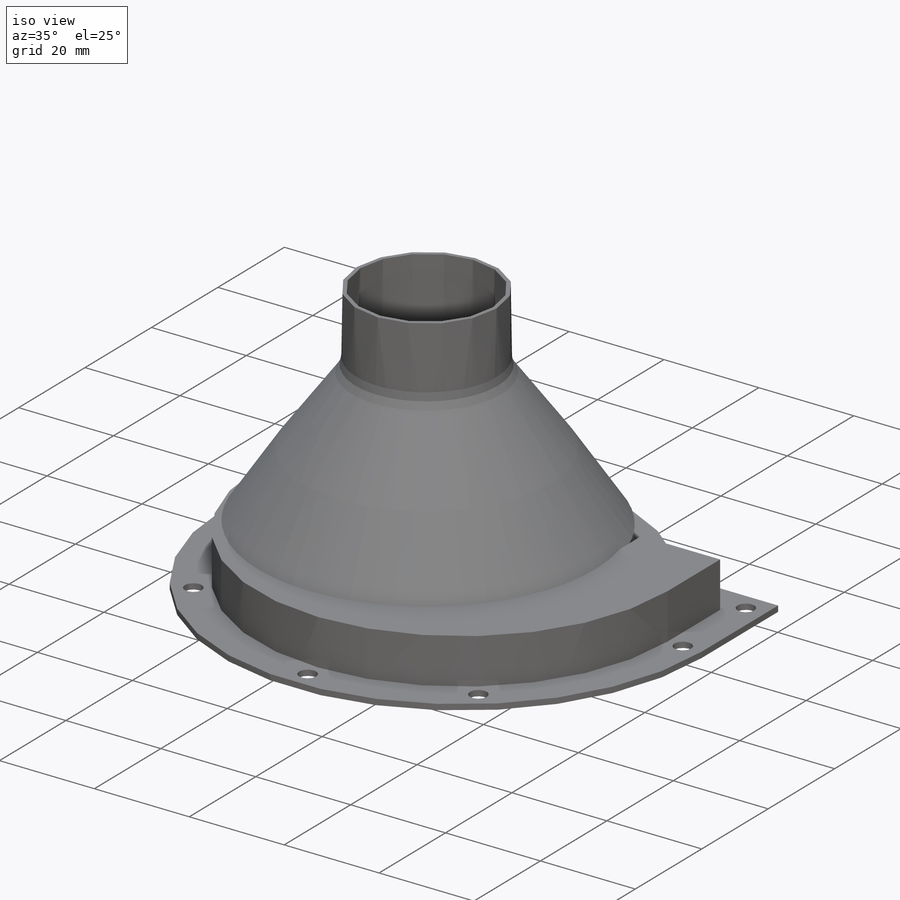
[diagram: iso view]
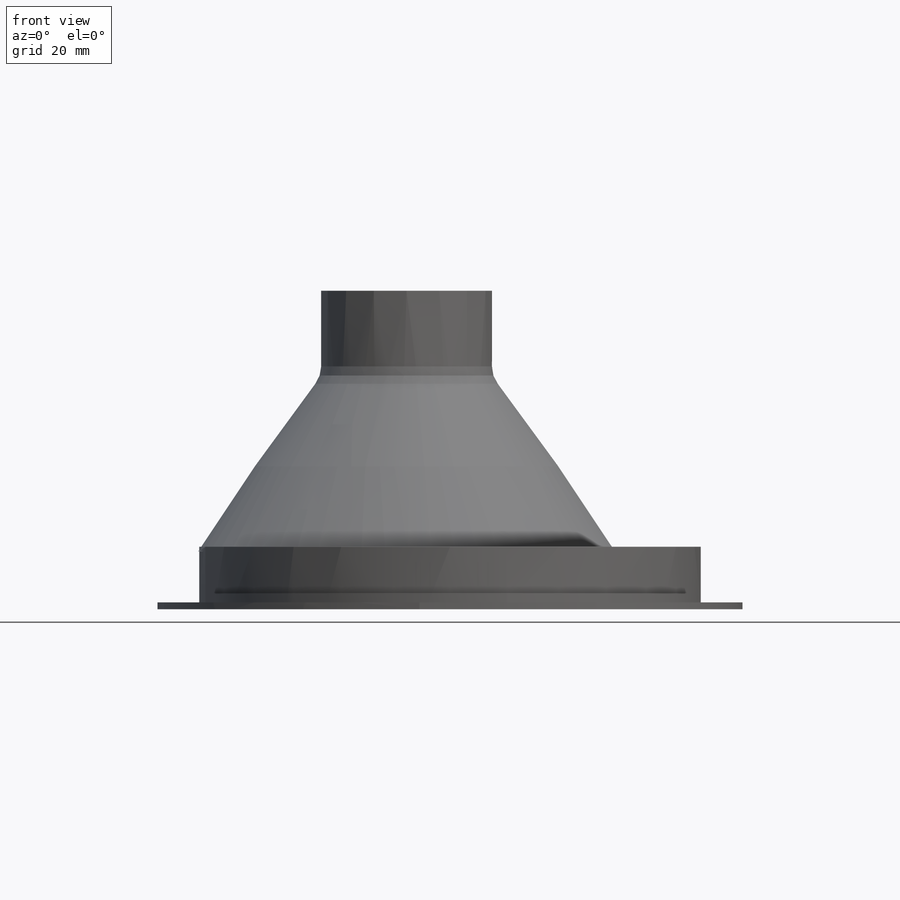
[diagram: front view]
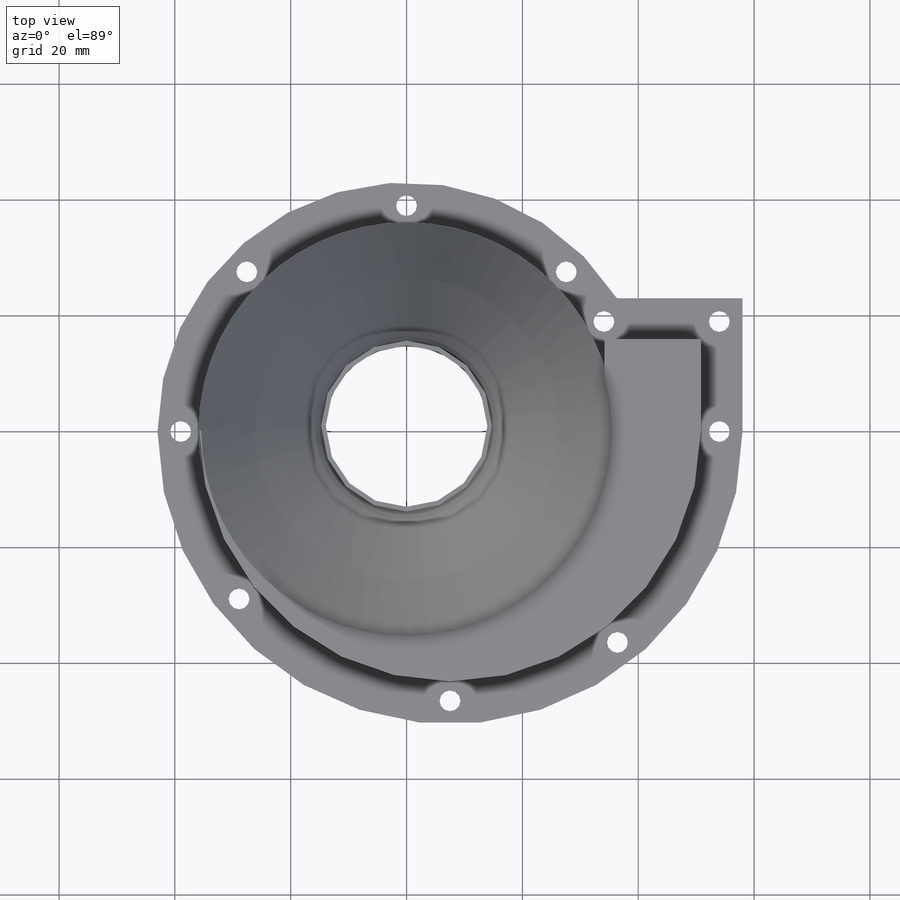
[diagram: top view]
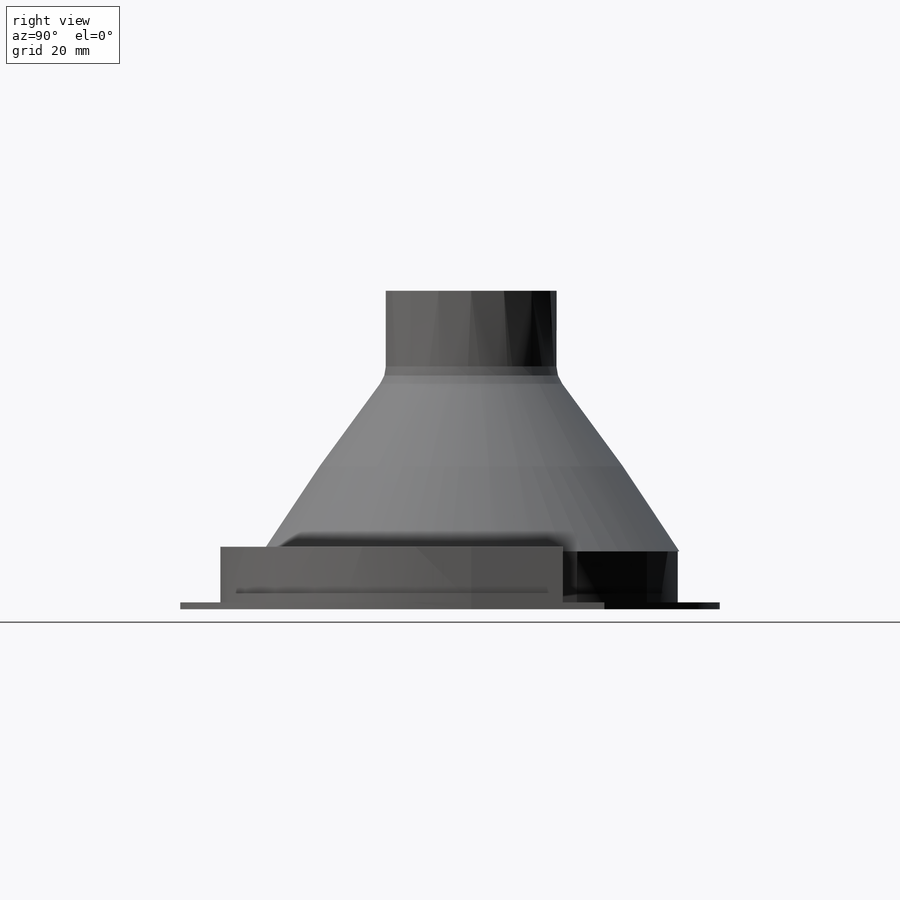
[diagram: right view]
SOLIDWORKS PART (.sldprt)
format: sldprt  version: not decoded by parser v0  size: 546,304 bytes
history: native  units: mm
features: sketch x10, plane x5, extrude x3, fillet x2, material x1 (+8 scaffold rows collapsed)
feature tree (29):
  scaffold x8  (default folders/planes/origin — collapsed)
  material  "Материал <не указан>"
  plane  "Спереди"
  plane  "Сверху"
  plane  "Справа"
  sketch  "Эскиз1"  dims[D1=15.0mm D2=15.0mm]
  sketch  "Эскиз7"  dims[D2=15.0mm D1=8.0mm]
  extrude  "Бобышка-Вытянуть2"  Depth=1.2mm
  sketch  "Эскиз8"  dims[c1.D2=~1.746767mm c1.D1=4.0mm c2.D1=10.0mm c2.D5=0.8mm c2.D6=1.0mm c2.D7=5.0mm]
  sketch  "Эскиз16"
  plane  "Плоскость3"  Offset=15mm
  plane  "Плоскость4"  Offset=15mm
  sketch  "Эскиз13"  dims[D1=27.9mm]
  sketch  "Эскиз14"  dims[c1.D1=~19.118072mm c2.D1=0.8mm]
  sketch  "Эскиз15"  dims[D1=29.5mm]
  extrude  "Вытянуть-Тонкостенный3"  Depth=15mm
  sketch  "Эскиз17"  dims[c1.D1=0.8mm c1.D2=0.0mm c2.D1=0.8mm c2.D3=0.8mm c2.D4=0.8mm c2.D2=0.8mm c3.D1=0.8mm c3.D2=0.8mm c4.D1=0.8mm]
  sketch  "Эскиз19"  dims[D1=~33.556583mm]
  extrude  "Вытянуть-Тонкостенный6"  Depth=0.4mm
  sketch  "Эскиз20"  dims[c1.D1=0.8mm c2.D1=2.0mm]
  fillet  "Скругление1"  Radius=5mm
  fillet  "Скругление2"  Radius=5mm
decode coverage: 14 of 15 modeling features carry decoded parameters
note: ~ marks probable driven/reference dimensions
note: suppression state not decoded; provenance and decode notes live in map.json
